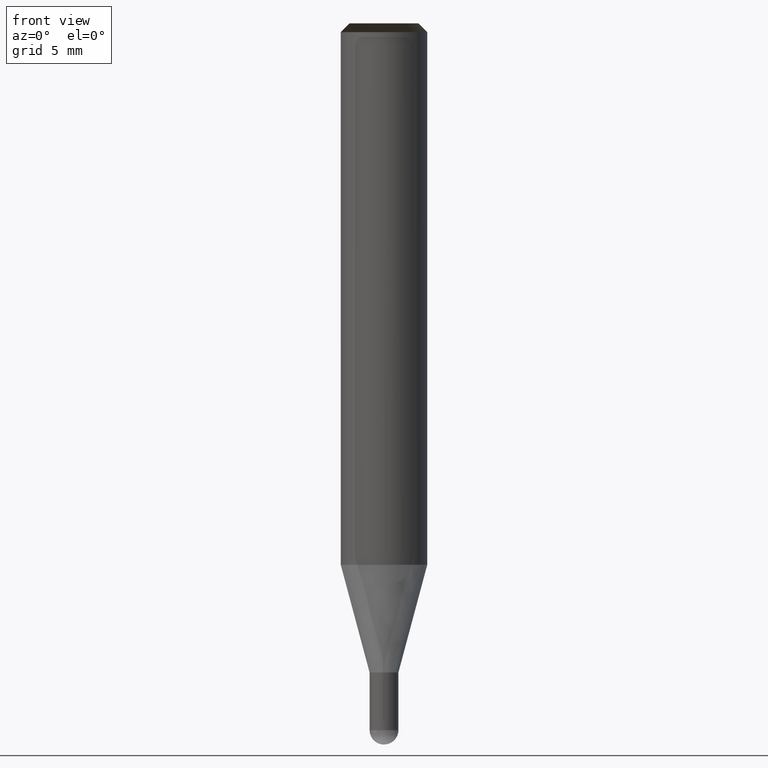
[diagram: clean part render]
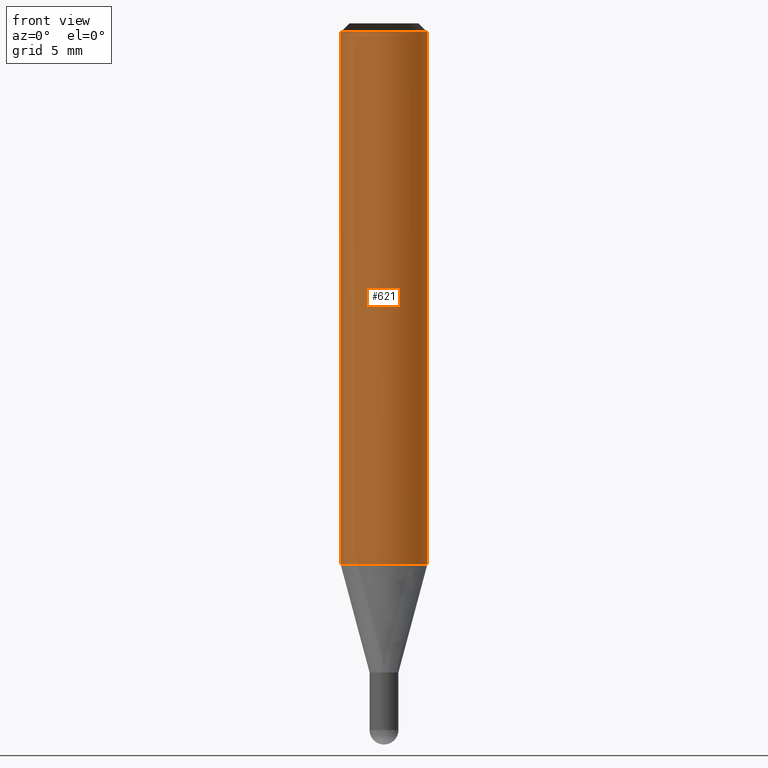
[diagram: same view with one face highlighted and labeled with its STEP entity id]
A machine part, front view. The second image highlights one B-rep face of the part: STEP entity #621.
In plain terms, the highlighted face is a freeform B-spline surface patch.
Its self-contained STEP definition (entity closure, byte-faithful):
#293=CARTESIAN_POINT('',(3.0,0.0,-0.0));
#297=CARTESIAN_POINT('',(-3.0,0.0,-0.0));
#298=CARTESIAN_POINT('',(3.0,0.0,36.935));
#302=CARTESIAN_POINT('',(-3.0,0.0,36.935));
#312=CARTESIAN_POINT('',(-3.0,-3.0,-0.0));
#313=CARTESIAN_POINT('',(0.0,-3.0,-0.0));
#314=CARTESIAN_POINT('',(3.0,-3.0,-0.0));
#315=CARTESIAN_POINT('',(-3.0,-3.0,36.935));
#316=CARTESIAN_POINT('',(0.0,-3.0,36.935));
#317=CARTESIAN_POINT('',(3.0,-3.0,36.935));
#602=(
BOUNDED_SURFACE()
B_SPLINE_SURFACE(1,2,(
(#297,#312,#313,#314,#293),
(#302,#315,#316,#317,#298)
), .UNSPECIFIED.,.F.,.F.,.F.)
B_SPLINE_SURFACE_WITH_KNOTS((2,2),(3,2,3),(
0.0,1.0),(
0.0,0.5,1.0), .UNSPECIFIED.)
GEOMETRIC_REPRESENTATION_ITEM()
RATIONAL_B_SPLINE_SURFACE(((1.0,0.707106781187,1.0,0.707106781187,1.0),
(1.0,0.707106781187,1.0,0.707106781187,1.0)
))
REPRESENTATION_ITEM('')
SURFACE()
);
#603=(
BOUNDED_CURVE()
B_SPLINE_CURVE(1,(#302,#297),.UNSPECIFIED.,.F.,.F.)
B_SPLINE_CURVE_WITH_KNOTS((2,2),
(0.0,1.0),.UNSPECIFIED.)
CURVE()
GEOMETRIC_REPRESENTATION_ITEM()
RATIONAL_B_SPLINE_CURVE((1.0,1.0))
REPRESENTATION_ITEM('')
);
#604=(
BOUNDED_CURVE()
B_SPLINE_CURVE(2,(#297,#312,#313,#314,#293),.UNSPECIFIED.,.F.,.F.)
B_SPLINE_CURVE_WITH_KNOTS((3,2,3),
(0.0,0.5,1.0),.UNSPECIFIED.)
CURVE()
GEOMETRIC_REPRESENTATION_ITEM()
RATIONAL_B_SPLINE_CURVE((1.0,0.707106781187,1.0,0.707106781187,1.0))
REPRESENTATION_ITEM('')
);
#605=(
BOUNDED_CURVE()
B_SPLINE_CURVE(1,(#293,#298),.UNSPECIFIED.,.F.,.F.)
B_SPLINE_CURVE_WITH_KNOTS((2,2),
(0.0,1.0),.UNSPECIFIED.)
CURVE()
GEOMETRIC_REPRESENTATION_ITEM()
RATIONAL_B_SPLINE_CURVE((1.0,1.0))
REPRESENTATION_ITEM('')
);
#606=(
BOUNDED_CURVE()
B_SPLINE_CURVE(2,(#298,#317,#316,#315,#302),.UNSPECIFIED.,.F.,.F.)
B_SPLINE_CURVE_WITH_KNOTS((3,2,3),
(0.0,0.5,1.0),.UNSPECIFIED.)
CURVE()
GEOMETRIC_REPRESENTATION_ITEM()
RATIONAL_B_SPLINE_CURVE((1.0,0.707106781187,1.0,0.707106781187,1.0))
REPRESENTATION_ITEM('')
);
#607=VERTEX_POINT('',#293);
#608=VERTEX_POINT('',#297);
#609=VERTEX_POINT('',#298);
#610=VERTEX_POINT('',#302);
#611=EDGE_CURVE('',#610,#608,#603,.T.);
#612=EDGE_CURVE('',#608,#607,#604,.T.);
#613=EDGE_CURVE('',#607,#609,#605,.T.);
#614=EDGE_CURVE('',#609,#610,#606,.T.);
#615=ORIENTED_EDGE('',*,*,#611,.T.);
#616=ORIENTED_EDGE('',*,*,#612,.T.);
#617=ORIENTED_EDGE('',*,*,#613,.T.);
#618=ORIENTED_EDGE('',*,*,#614,.T.);
#619=EDGE_LOOP('',(#615,#616,#617,#618));
#620=FACE_OUTER_BOUND('',#619,.T.);
#621=ADVANCED_FACE('',(#620),#602,.T.);